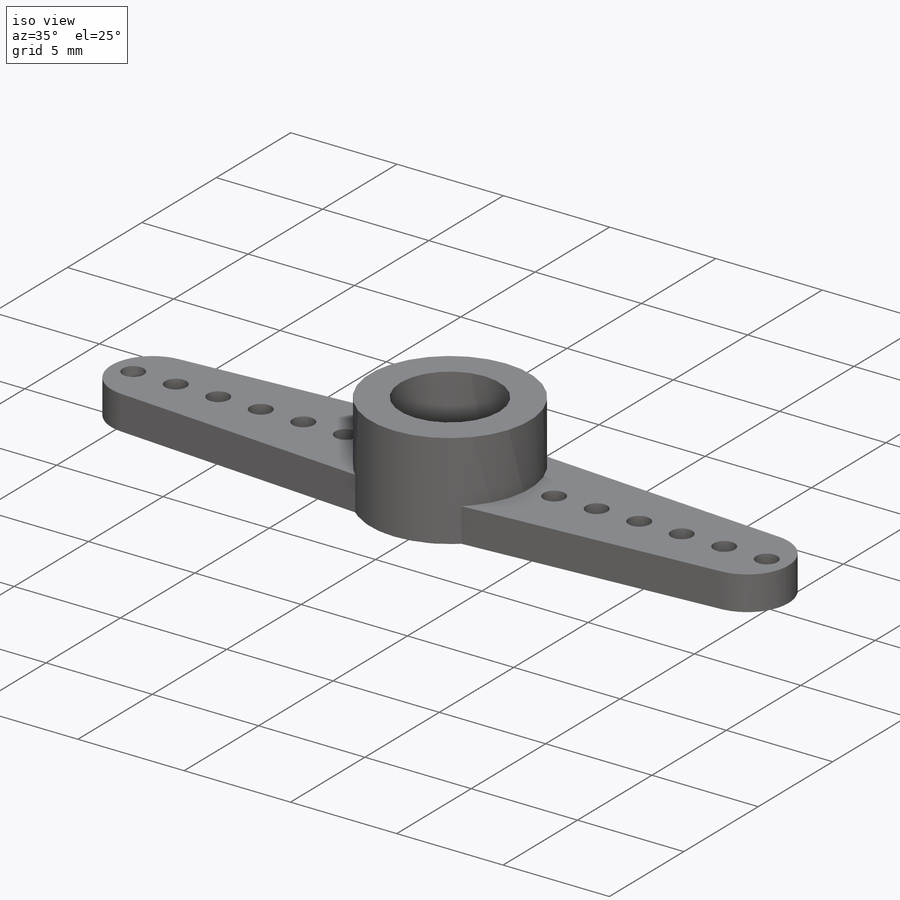
[diagram: iso view]
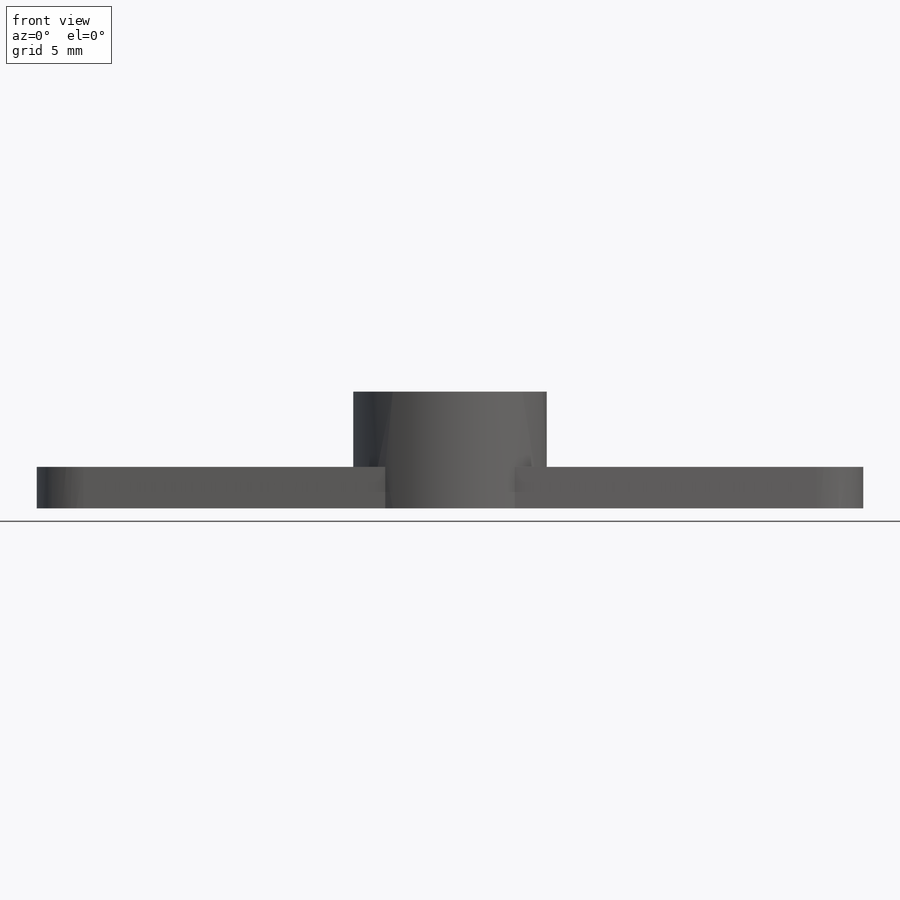
[diagram: front view]
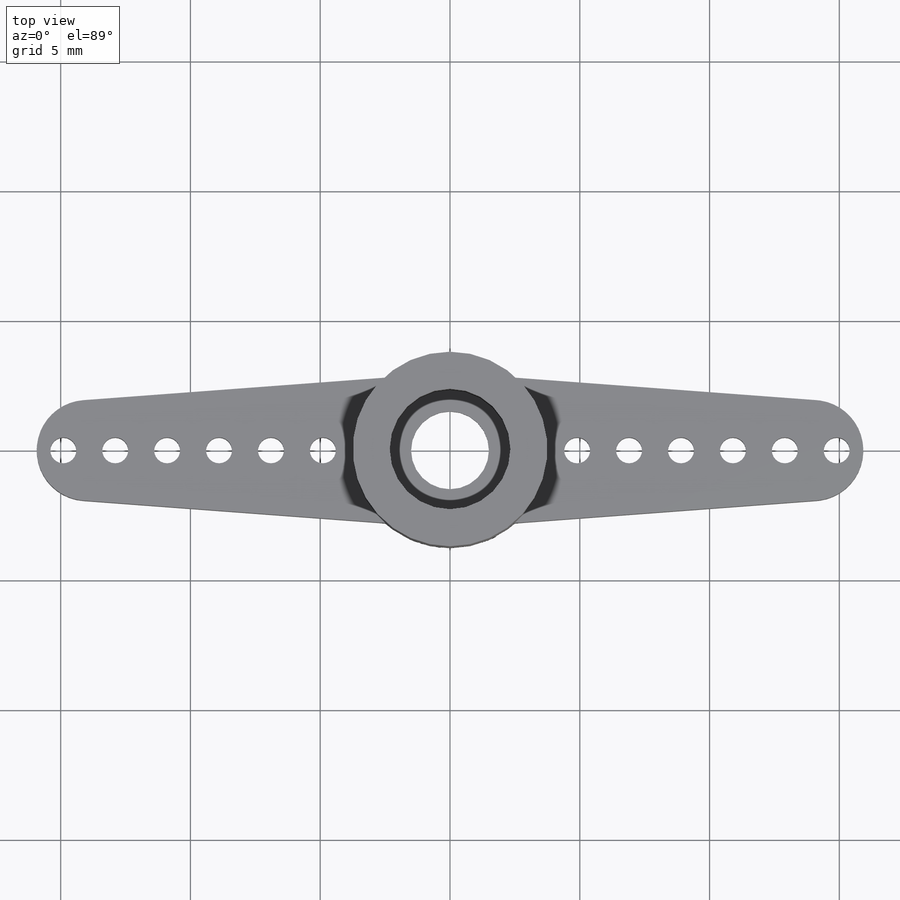
[diagram: top view]
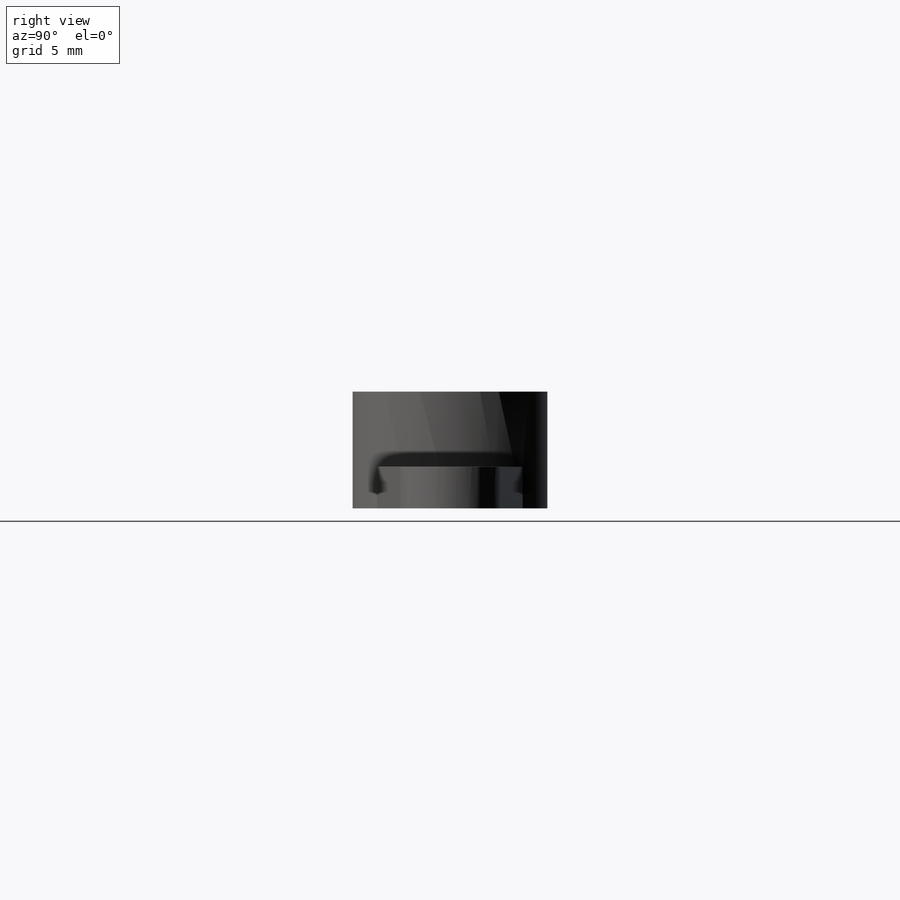
[diagram: right view]
SOLIDWORKS PART (.sldprt)
format: sldprt  version: not decoded by parser v0  size: 255,488 bytes
history: native  units: mm
features: sketch x3, extrude x2, fillet x2, material x1, cut_extrude x1 (+12 scaffold rows collapsed)
feature tree (21):
  scaffold x12  (default folders/planes/origin — collapsed)
  material  "ABS"
  sketch  "Sketch1"  dims[c1.D1=7.5mm c1.D2=1.0mm c1.D5=1.1mm c1.D6=1.1mm c1.D7=3.0mm c1.D10=1.0mm c1.D3=4.9mm c2.D5=2.0mm c2.D6=31.85mm c2.D8=5.6mm c2.D9=3.75mm c2.D10=2.9mm c2.D4=6.0]
  extrude  "Boss-Extrude1"  Depth=1.6mm
  sketch  "Sketch2"  dims[D1=7.5mm D2=4.65mm]
  extrude  "Boss-Extrude2"  Depth=2.9mm
  fillet  "Fillet1"  [1 undecoded]
  fillet  "Fillet2"  [1 undecoded]
  sketch  "Sketch3"  dims[D1=4.9mm D2=1.95mm]
  cut_extrude  "Cut-Extrude1"  Depth=0.8mm
decode coverage: 6 of 8 modeling features carry decoded parameters
note: 2 parameter values undecoded
note: suppression state not decoded; provenance and decode notes live in map.json
